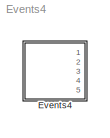
MODEL Events4
KIND model
CONFIG AbsTol = auto
CONFIG FixedStep = auto
CONFIG MaxStep = auto
CONFIG MinStep = auto
CONFIG RelTol = 1e-3
CONFIG Solver = ode45
CONFIG SolverMode = Auto
CONFIG StartTime = 0.0
CONFIG StopTime = 10.0
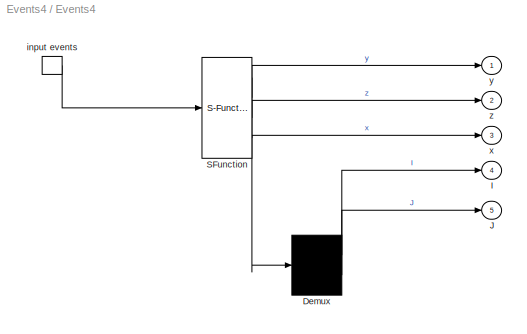
BLOCK [SubSystem] Events4
  MaskDescription = Stateflow diagram
  MaskDisplay = plot(sf('Private','sfblk','xIcon'),sf('Private','sfblk','yIcon'));text(0.5,0,sf('Private', 'sfblk', 'tIcon'),'HorizontalAl','Center','VerticalAl','Bottom');
  MaskIconFrame = off
  MaskIconOpaque = off
  MaskIconRotate = none
  MaskIconUnits = autoscale
  MaskSelfModifiable = on
  MaskType = Stateflow
  Ports = [0, 5, 0, 1]
  TreatAsAtomicUnit = off
BLOCK [Demux] Events4/ Demux 
  Outputs = 2
  Ports = [1, 2]
BLOCK [S-Function] Events4/ SFunction 
  FunctionName = sf_sfun
  PortCounts = [1 4]
  Ports = [1, 4]
  Tag = Stateflow S-Function Events4 1
BLOCK [TriggerPort] Events4/ input events 
  Ports = [0, 1]
  ShowOutputPort = on
BLOCK [Outport] Events4/I
  Port = 4
BLOCK [Outport] Events4/J
  Port = 5
BLOCK [Outport] Events4/x
  Port = 3
BLOCK [Outport] Events4/y
BLOCK [Outport] Events4/z
  Port = 2
LINE Events4/ Demux :1 -> Events4/I:1
LINE Events4/ Demux :2 -> Events4/J:1
LINE Events4/ SFunction :1 -> Events4/ Demux :1
LINE Events4/ SFunction :2 -> Events4/y:1
LINE Events4/ SFunction :3 -> Events4/z:1
LINE Events4/ SFunction :4 -> Events4/x:1
LINE Events4/ input events :1 -> Events4/ SFunction :1
CHART Events4 states=11 transitions=13
  STATE_LABEL 'TOP'
  STATE_LABEL 'A'
  STATE_LABEL 'A1/\\nen:y++;\\nex:y--;'
  STATE_LABEL 'A2/\\nen:y+=10;\\nex:y-=10;'
  STATE_LABEL 'B'
  STATE_LABEL 'B1'
  STATE_LABEL 'B2'
  STATE_LABEL 'B1a/\\nen:E;x++;'
  STATE_LABEL 'B1b/\\nen:E;x++;'
  STATE_LABEL 'B2a'
  STATE_LABEL 'B2b'
